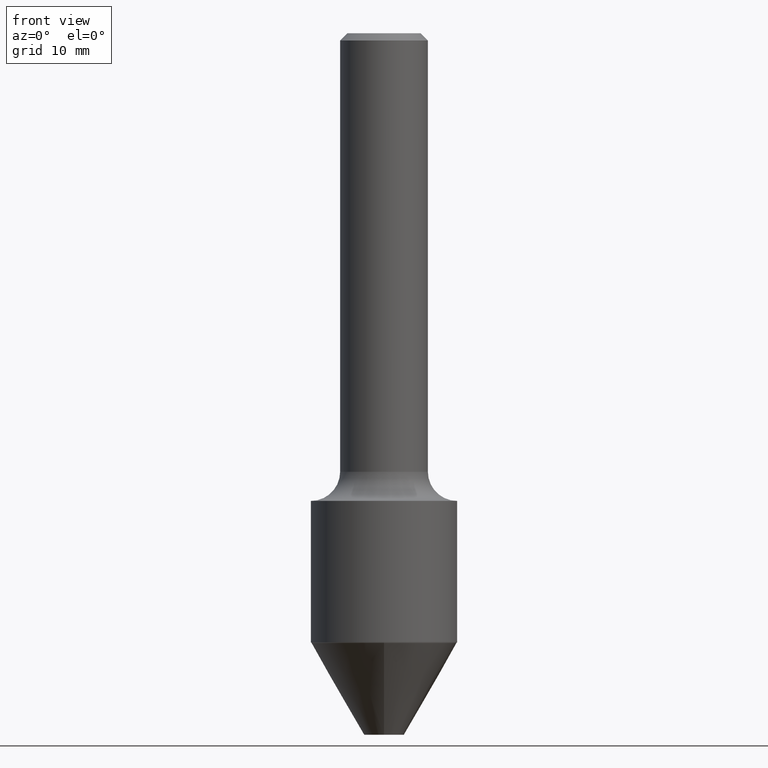
[diagram: clean part render]
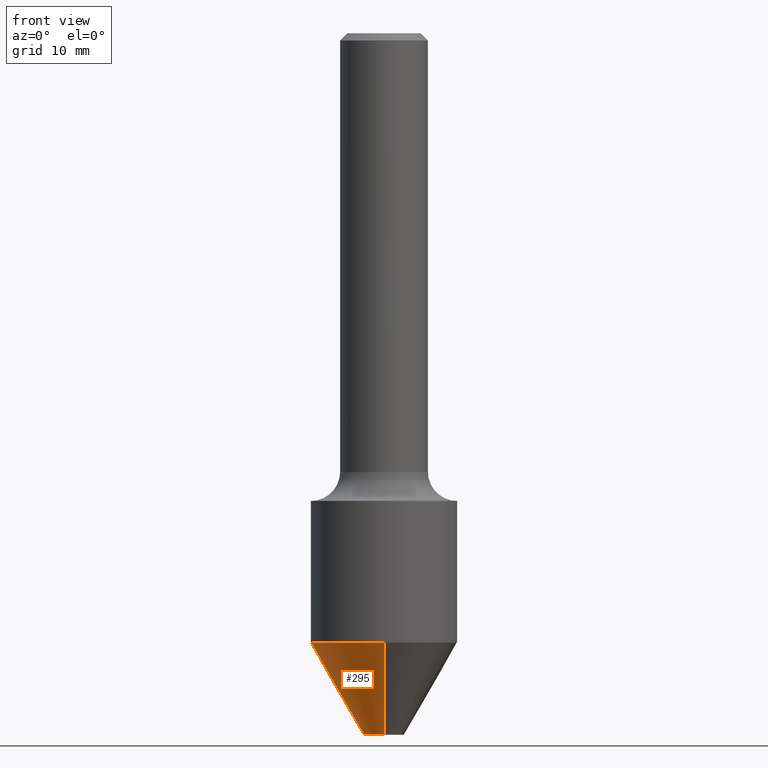
[diagram: same view with one face highlighted and labeled with its STEP entity id]
A machine part, front view. The second image highlights one B-rep face of the part: STEP entity #295.
In plain terms, the highlighted conical surface has half-angle 30 deg.
Its self-contained STEP definition (entity closure, byte-faithful):
#8 = LINE ( 'NONE', #369, #69 ) ;
#12 = EDGE_CURVE ( 'NONE', #238, #324, #91, .T. ) ;
#25 = DIRECTION ( 'NONE',  ( -6.982962677686265133E-15, -1.000000000000000000, 3.496765431890257708E-15 ) ) ;
#66 = LINE ( 'NONE', #468, #386 ) ;
#69 = VECTOR ( 'NONE', #325, 39.37007874015748854 ) ;
#91 = CIRCLE ( 'NONE', #426, 0.08499999999999975631 ) ;
#97 = EDGE_CURVE ( 'NONE', #412, #371, #458, .T. ) ;
#116 = DIRECTION ( 'NONE',  ( -6.982962677686265133E-15, -1.000000000000000000, 3.496765431890257708E-15 ) ) ;
#134 = ORIENTED_EDGE ( 'NONE', *, *, #12, .T. ) ;
#166 = ORIENTED_EDGE ( 'NONE', *, *, #200, .T. ) ;
#200 = EDGE_CURVE ( 'NONE', #324, #371, #66, .T. ) ;
#216 = CARTESIAN_POINT ( 'NONE',  ( 2.220446049250375795E-15, 0.3124999999999907851, -2.605958441278117821 ) ) ;
#223 = EDGE_LOOP ( 'NONE', ( #366, #134, #166, #368 ) ) ;
#229 = AXIS2_PLACEMENT_3D ( 'NONE', #394, #348, #116 ) ;
#238 = VERTEX_POINT ( 'NONE', #272 ) ;
#249 = DIRECTION ( 'NONE',  ( -2.542258042793565375E-29, 3.352873643118644171E-15, 1.000000000000000000 ) ) ;
#256 = DIRECTION ( 'NONE',  ( -6.982962677686265922E-15, -1.000000000000000000, 6.427877632151226320E-15 ) ) ;
#267 = CARTESIAN_POINT ( 'NONE',  ( 6.346134268352303215E-29, -9.136827904609504571E-15, -2.605958441278116933 ) ) ;
#272 = CARTESIAN_POINT ( 'NONE',  ( 1.412203687323265652E-15, 0.08499999999998929245, -3.000000000000001332 ) ) ;
#295 = ADVANCED_FACE ( 'NONE', ( #461 ), #297, .T. ) ;
#297 = CONICAL_SURFACE ( 'NONE', #446, 0.3124999999999999445, 0.5235987755983383396 ) ;
#310 = CARTESIAN_POINT ( 'NONE',  ( -5.935518276032573736E-16, -0.08500000000001022016, -3.000000000000000444 ) ) ;
#324 = VERTEX_POINT ( 'NONE', #310 ) ;
#325 = DIRECTION ( 'NONE',  ( 3.552713678800720233E-15, 0.5000000000000369704, 0.8660254037844171693 ) ) ;
#348 = DIRECTION ( 'NONE',  ( -2.542258042793565375E-29, 3.352873643118644171E-15, 1.000000000000000000 ) ) ;
#362 = DIRECTION ( 'NONE',  ( -3.491481338843393285E-15, -0.5000000000000313083, 0.8660254037844206110 ) ) ;
#366 = ORIENTED_EDGE ( 'NONE', *, *, #480, .F. ) ;
#368 = ORIENTED_EDGE ( 'NONE', *, *, #97, .F. ) ;
#369 = CARTESIAN_POINT ( 'NONE',  ( 2.220446049250375795E-15, 0.3124999999999907851, -2.605958441278117821 ) ) ;
#371 = VERTEX_POINT ( 'NONE', #393 ) ;
#386 = VECTOR ( 'NONE', #362, 39.37007874015748143 ) ;
#393 = CARTESIAN_POINT ( 'NONE',  ( -2.182175836776893660E-15, -0.3125000000000091038, -2.605958441278115600 ) ) ;
#394 = CARTESIAN_POINT ( 'NONE',  ( 6.346134268352303215E-29, -9.136827904609504571E-15, -2.605958441278116933 ) ) ;
#412 = VERTEX_POINT ( 'NONE', #216 ) ;
#422 = DIRECTION ( 'NONE',  ( -2.542258042793565375E-29, 3.352873643118644171E-15, 1.000000000000000000 ) ) ;
#426 = AXIS2_PLACEMENT_3D ( 'NONE', #498, #249, #256 ) ;
#446 = AXIS2_PLACEMENT_3D ( 'NONE', #267, #422, #25 ) ;
#458 = CIRCLE ( 'NONE', #229, 0.3124999999999999445 ) ;
#461 = FACE_OUTER_BOUND ( 'NONE', #223, .T. ) ;
#468 = CARTESIAN_POINT ( 'NONE',  ( -2.182175836776894055E-15, -0.3125000000000091038, -2.605958441278115600 ) ) ;
#480 = EDGE_CURVE ( 'NONE', #238, #412, #8, .T. ) ;
#498 = CARTESIAN_POINT ( 'NONE',  ( 7.347889590207925829E-29, -1.045799946114149675E-14, -3.000000000000000888 ) ) ;